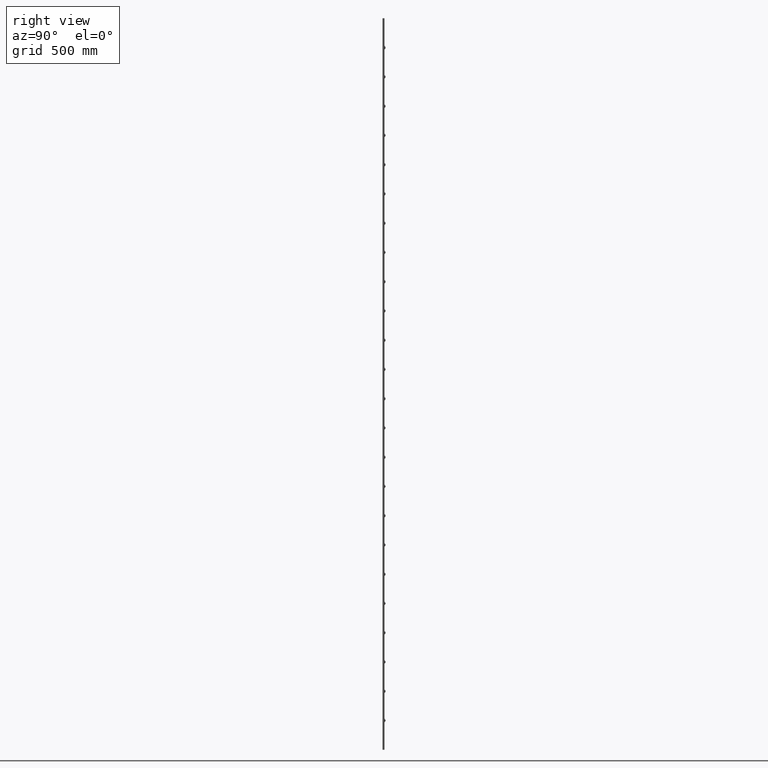
[diagram: clean part render]
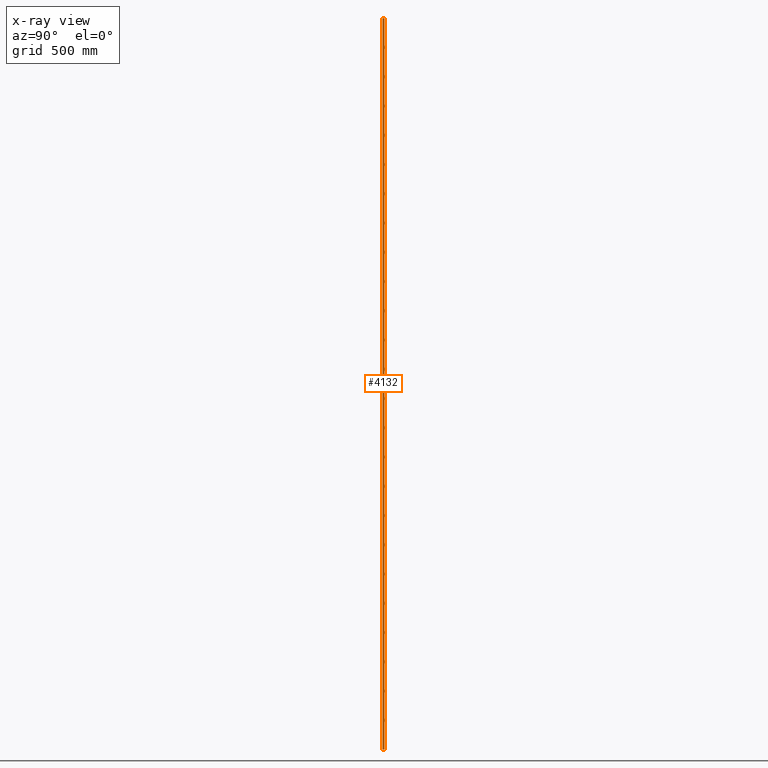
[diagram: x-ray — body ghosted, one internal face saturated and labeled with its STEP entity id]
A machine part, right view, then the same camera in x-ray: the body is ghosted and one INTERNAL B-rep face — a face not visible from any outside direction — is saturated and labeled: STEP entity #4132.
In plain terms, the highlighted planar face has unit normal (1, 0, 0).
Its self-contained STEP definition (entity closure, byte-faithful):
#62 = PLANE ( 'NONE',  #4386 ) ;
#105 = VERTEX_POINT ( 'NONE', #4749 ) ;
#235 = CARTESIAN_POINT ( 'NONE',  ( 30.00000000000000000, 0.0000000000000000000, 0.0000000000000000000 ) ) ;
#416 = CARTESIAN_POINT ( 'NONE',  ( 30.00000000000000000, 8.000000000000000000, 0.0000000000000000000 ) ) ;
#786 = LINE ( 'NONE', #991, #6689 ) ;
#991 = CARTESIAN_POINT ( 'NONE',  ( 30.00000000000000000, 0.0000000000000000000, -3000.000000000000000 ) ) ;
#1050 = DIRECTION ( 'NONE',  ( 0.0000000000000000000, 0.0000000000000000000, 1.000000000000000000 ) ) ;
#1180 = LINE ( 'NONE', #1855, #7008 ) ;
#1338 = ORIENTED_EDGE ( 'NONE', *, *, #6218, .F. ) ;
#1404 = VERTEX_POINT ( 'NONE', #235 ) ;
#1696 = CARTESIAN_POINT ( 'NONE',  ( 30.00000000000000000, 0.0000000000000000000, 0.0000000000000000000 ) ) ;
#1855 = CARTESIAN_POINT ( 'NONE',  ( 30.00000000000000000, 0.0000000000000000000, -3000.000000000000000 ) ) ;
#1936 = CARTESIAN_POINT ( 'NONE',  ( 30.00000000000000000, 0.0000000000000000000, -3000.000000000000000 ) ) ;
#2483 = CARTESIAN_POINT ( 'NONE',  ( 30.00000000000000000, 0.0000000000000000000, -3000.000000000000000 ) ) ;
#2608 = VECTOR ( 'NONE', #2781, 1000.000000000000000 ) ;
#2667 = ORIENTED_EDGE ( 'NONE', *, *, #5973, .T. ) ;
#2762 = LINE ( 'NONE', #1696, #7004 ) ;
#2781 = DIRECTION ( 'NONE',  ( 0.0000000000000000000, 0.0000000000000000000, 1.000000000000000000 ) ) ;
#2958 = ORIENTED_EDGE ( 'NONE', *, *, #6102, .T. ) ;
#2983 = EDGE_LOOP ( 'NONE', ( #7199, #1338, #2958, #2667 ) ) ;
#3085 = DIRECTION ( 'NONE',  ( 0.0000000000000000000, 0.0000000000000000000, -1.000000000000000000 ) ) ;
#3895 = FACE_OUTER_BOUND ( 'NONE', #2983, .T. ) ;
#4132 = ADVANCED_FACE ( 'NONE', ( #3895 ), #62, .T. ) ;
#4386 = AXIS2_PLACEMENT_3D ( 'NONE', #2483, #6434, #3085 ) ;
#4749 = CARTESIAN_POINT ( 'NONE',  ( 30.00000000000000000, 8.000000000000000000, -3000.000000000000000 ) ) ;
#5654 = LINE ( 'NONE', #6615, #2608 ) ;
#5788 = VERTEX_POINT ( 'NONE', #1936 ) ;
#5887 = DIRECTION ( 'NONE',  ( 0.0000000000000000000, 1.000000000000000000, 0.0000000000000000000 ) ) ;
#5973 = EDGE_CURVE ( 'NONE', #105, #7321, #5654, .T. ) ;
#6102 = EDGE_CURVE ( 'NONE', #5788, #105, #1180, .T. ) ;
#6218 = EDGE_CURVE ( 'NONE', #5788, #1404, #786, .T. ) ;
#6265 = DIRECTION ( 'NONE',  ( 0.0000000000000000000, 1.000000000000000000, 0.0000000000000000000 ) ) ;
#6434 = DIRECTION ( 'NONE',  ( 1.000000000000000000, 0.0000000000000000000, 0.0000000000000000000 ) ) ;
#6615 = CARTESIAN_POINT ( 'NONE',  ( 30.00000000000000000, 8.000000000000000000, -3000.000000000000000 ) ) ;
#6689 = VECTOR ( 'NONE', #1050, 1000.000000000000000 ) ;
#6865 = EDGE_CURVE ( 'NONE', #1404, #7321, #2762, .T. ) ;
#7004 = VECTOR ( 'NONE', #6265, 1000.000000000000000 ) ;
#7008 = VECTOR ( 'NONE', #5887, 1000.000000000000000 ) ;
#7199 = ORIENTED_EDGE ( 'NONE', *, *, #6865, .F. ) ;
#7321 = VERTEX_POINT ( 'NONE', #416 ) ;